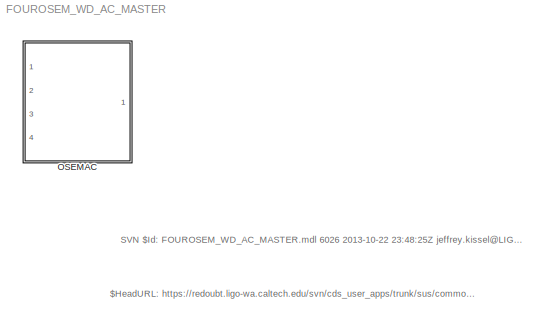
MODEL FOUROSEM_WD_AC_MASTER
KIND library
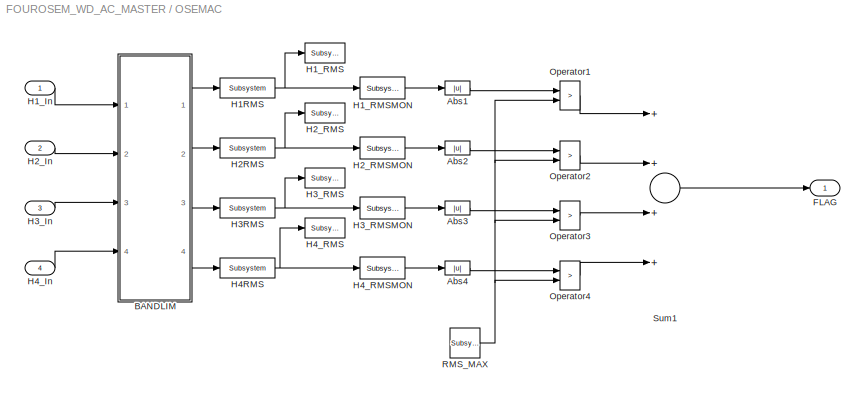
BLOCK [SubSystem] OSEMAC
  Ports = [4, 1]
  RequestExecContextInheritance = off
  SID = 1
BLOCK [Abs] OSEMAC/Abs1
  SID = 6
  SaturateOnIntegerOverflow = off
BLOCK [Abs] OSEMAC/Abs2
  SID = 7
  SaturateOnIntegerOverflow = off
BLOCK [Abs] OSEMAC/Abs3
  SID = 8
  SaturateOnIntegerOverflow = off
BLOCK [Abs] OSEMAC/Abs4
  SID = 9
  SaturateOnIntegerOverflow = off
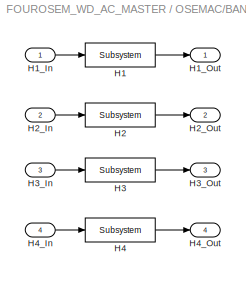
BLOCK [SubSystem] OSEMAC/BANDLIM
  Ports = [4, 4]
  RequestExecContextInheritance = off
  SID = 10
BLOCK [Reference] OSEMAC/BANDLIM/H1  REF=cdsFilt/Subsystem
  AttributesFormatString = %<Tag>
  Description = Purpose:                                                                                                                                                                                                                                  \nStandard CDS IIR filter module.                                                                                                                                     ...<+1302ch>  <repeated x4 — deduplicated; at blocks: H1, H2, H3, H4>
  FunctionWithSeparateData = off
  Ports = [1, 1]
  RTWMemSecDataConstants = Inherit from model
  RTWMemSecDataInternal = Inherit from model
  RTWMemSecDataParameters = Inherit from model
  RTWMemSecFuncExecute = Inherit from model
  RTWMemSecFuncInitTerm = Inherit from model
  SID = 17
  ShowPortLabels = FromPortIcon
  SourceBlock = cdsFilt/Subsystem
  SourceType = SubSystem
  SystemSampleTime = -1
  Tag = cdsFilt
BLOCK [Inport] OSEMAC/BANDLIM/H1_In
  IconDisplay = Port number
  SID = 11
BLOCK [Outport] OSEMAC/BANDLIM/H1_Out
  IconDisplay = Port number
  SID = 19
BLOCK [Reference] OSEMAC/BANDLIM/H2  REF=cdsFilt/Subsystem
  AttributesFormatString = %<Tag>
  FunctionWithSeparateData = off
  Ports = [1, 1]
  RTWMemSecDataConstants = Inherit from model
  RTWMemSecDataInternal = Inherit from model
  RTWMemSecDataParameters = Inherit from model
  RTWMemSecFuncExecute = Inherit from model
  RTWMemSecFuncInitTerm = Inherit from model
  SID = 15
  ShowPortLabels = FromPortIcon
  SourceBlock = cdsFilt/Subsystem
  SourceType = SubSystem
  SystemSampleTime = -1
  Tag = cdsFilt
BLOCK [Inport] OSEMAC/BANDLIM/H2_In
  IconDisplay = Port number
  Port = 2
  SID = 12
BLOCK [Outport] OSEMAC/BANDLIM/H2_Out
  IconDisplay = Port number
  Port = 2
  SID = 20
BLOCK [Reference] OSEMAC/BANDLIM/H3  REF=cdsFilt/Subsystem
  AttributesFormatString = %<Tag>
  FunctionWithSeparateData = off
  Ports = [1, 1]
  RTWMemSecDataConstants = Inherit from model
  RTWMemSecDataInternal = Inherit from model
  RTWMemSecDataParameters = Inherit from model
  RTWMemSecFuncExecute = Inherit from model
  RTWMemSecFuncInitTerm = Inherit from model
  SID = 18
  ShowPortLabels = FromPortIcon
  SourceBlock = cdsFilt/Subsystem
  SourceType = SubSystem
  SystemSampleTime = -1
  Tag = cdsFilt
BLOCK [Inport] OSEMAC/BANDLIM/H3_In
  IconDisplay = Port number
  Port = 3
  SID = 13
BLOCK [Outport] OSEMAC/BANDLIM/H3_Out
  IconDisplay = Port number
  Port = 3
  SID = 21
BLOCK [Reference] OSEMAC/BANDLIM/H4  REF=cdsFilt/Subsystem
  AttributesFormatString = %<Tag>
  FunctionWithSeparateData = off
  Ports = [1, 1]
  RTWMemSecDataConstants = Inherit from model
  RTWMemSecDataInternal = Inherit from model
  RTWMemSecDataParameters = Inherit from model
  RTWMemSecFuncExecute = Inherit from model
  RTWMemSecFuncInitTerm = Inherit from model
  SID = 16
  ShowPortLabels = FromPortIcon
  SourceBlock = cdsFilt/Subsystem
  SourceType = SubSystem
  SystemSampleTime = -1
  Tag = cdsFilt
BLOCK [Inport] OSEMAC/BANDLIM/H4_In
  IconDisplay = Port number
  Port = 4
  SID = 14
BLOCK [Outport] OSEMAC/BANDLIM/H4_Out
  IconDisplay = Port number
  Port = 4
  SID = 22
BLOCK [Outport] OSEMAC/FLAG
  IconDisplay = Port number
  SID = 41
BLOCK [Reference] OSEMAC/H1RMS  REF=cdsRms/Subsystem
  AttributesFormatString = %<Tag>
  Description = Purpose:                                   \nCalculate an RMS based on the input signal.
  FunctionWithSeparateData = off
  Ports = [1, 1]
  RTWMemSecDataConstants = Inherit from model
  RTWMemSecDataInternal = Inherit from model
  RTWMemSecDataParameters = Inherit from model
  RTWMemSecFuncExecute = Inherit from model
  RTWMemSecFuncInitTerm = Inherit from model
  SID = 35
  ShowPortLabels = FromPortIcon
  SourceBlock = cdsRms/Subsystem
  SourceType = SubSystem
  SystemSampleTime = -1
  Tag = cdsRms
BLOCK [Inport] OSEMAC/H1_In
  IconDisplay = Port number
  SID = 2
BLOCK [Reference] OSEMAC/H1_RMS  REF=cdsTP/Subsystem
  AttributesFormatString = %<Tag>
  FunctionWithSeparateData = off
  Ports = [1]
  RTWMemSecDataConstants = Inherit from model
  RTWMemSecDataInternal = Inherit from model
  RTWMemSecDataParameters = Inherit from model
  RTWMemSecFuncExecute = Inherit from model
  RTWMemSecFuncInitTerm = Inherit from model
  SID = 36
  ShowPortLabels = FromPortIcon
  SourceBlock = cdsTP/Subsystem
  SourceType = SubSystem
  SystemSampleTime = -1
  Tag = Test Point
BLOCK [Reference] OSEMAC/H1_RMSMON  REF=cdsEpicsOut/Subsystem
  AttributesFormatString = %<Tag>
  Description = Purpose:                                          \nOutput a FE signal to an EPICS channel.           \n                                                  \nOperation:                                        \nTakes input value and passes it to EPICS record.  \n                                                  \nUsage:                                            \nName the part with the desired EPICS...<+14ch>  <repeated x4 — deduplicated; at blocks: H1_RMSMON, H2_RMSMON, H3_RMSMON, H4_RMSMON>
  FunctionWithSeparateData = off
  Ports = [1, 1]
  RTWMemSecDataConstants = Inherit from model
  RTWMemSecDataInternal = Inherit from model
  RTWMemSecDataParameters = Inherit from model
  RTWMemSecFuncExecute = Inherit from model
  RTWMemSecFuncInitTerm = Inherit from model
  SID = 37
  ShowPortLabels = FromPortIcon
  SourceBlock = cdsEpicsOut/Subsystem
  SourceType = SubSystem
  SystemSampleTime = -1
  Tag = cdsEpicsOutput
BLOCK [Reference] OSEMAC/H2RMS  REF=cdsRms/Subsystem
  AttributesFormatString = %<Tag>
  Description = Purpose:                                   \nCalculate an RMS based on the input signal.
  FunctionWithSeparateData = off
  Ports = [1, 1]
  RTWMemSecDataConstants = Inherit from model
  RTWMemSecDataInternal = Inherit from model
  RTWMemSecDataParameters = Inherit from model
  RTWMemSecFuncExecute = Inherit from model
  RTWMemSecFuncInitTerm = Inherit from model
  SID = 23
  ShowPortLabels = FromPortIcon
  SourceBlock = cdsRms/Subsystem
  SourceType = SubSystem
  SystemSampleTime = -1
  Tag = cdsRms
BLOCK [Inport] OSEMAC/H2_In
  IconDisplay = Port number
  Port = 2
  SID = 3
BLOCK [Reference] OSEMAC/H2_RMS  REF=cdsTP/Subsystem
  AttributesFormatString = %<Tag>
  FunctionWithSeparateData = off
  Ports = [1]
  RTWMemSecDataConstants = Inherit from model
  RTWMemSecDataInternal = Inherit from model
  RTWMemSecDataParameters = Inherit from model
  RTWMemSecFuncExecute = Inherit from model
  RTWMemSecFuncInitTerm = Inherit from model
  SID = 24
  ShowPortLabels = FromPortIcon
  SourceBlock = cdsTP/Subsystem
  SourceType = SubSystem
  SystemSampleTime = -1
  Tag = Test Point
BLOCK [Reference] OSEMAC/H2_RMSMON  REF=cdsEpicsOut/Subsystem
  AttributesFormatString = %<Tag>
  FunctionWithSeparateData = off
  Ports = [1, 1]
  RTWMemSecDataConstants = Inherit from model
  RTWMemSecDataInternal = Inherit from model
  RTWMemSecDataParameters = Inherit from model
  RTWMemSecFuncExecute = Inherit from model
  RTWMemSecFuncInitTerm = Inherit from model
  SID = 25
  ShowPortLabels = FromPortIcon
  SourceBlock = cdsEpicsOut/Subsystem
  SourceType = SubSystem
  SystemSampleTime = -1
  Tag = cdsEpicsOutput
BLOCK [Reference] OSEMAC/H3RMS  REF=cdsRms/Subsystem
  AttributesFormatString = %<Tag>
  Description = Purpose:                                   \nCalculate an RMS based on the input signal.
  FunctionWithSeparateData = off
  Ports = [1, 1]
  RTWMemSecDataConstants = Inherit from model
  RTWMemSecDataInternal = Inherit from model
  RTWMemSecDataParameters = Inherit from model
  RTWMemSecFuncExecute = Inherit from model
  RTWMemSecFuncInitTerm = Inherit from model
  SID = 38
  ShowPortLabels = FromPortIcon
  SourceBlock = cdsRms/Subsystem
  SourceType = SubSystem
  SystemSampleTime = -1
  Tag = cdsRms
BLOCK [Inport] OSEMAC/H3_In
  IconDisplay = Port number
  Port = 3
  SID = 4
BLOCK [Reference] OSEMAC/H3_RMS  REF=cdsTP/Subsystem
  AttributesFormatString = %<Tag>
  FunctionWithSeparateData = off
  Ports = [1]
  RTWMemSecDataConstants = Inherit from model
  RTWMemSecDataInternal = Inherit from model
  RTWMemSecDataParameters = Inherit from model
  RTWMemSecFuncExecute = Inherit from model
  RTWMemSecFuncInitTerm = Inherit from model
  SID = 39
  ShowPortLabels = FromPortIcon
  SourceBlock = cdsTP/Subsystem
  SourceType = SubSystem
  SystemSampleTime = -1
  Tag = Test Point
BLOCK [Reference] OSEMAC/H3_RMSMON  REF=cdsEpicsOut/Subsystem
  AttributesFormatString = %<Tag>
  FunctionWithSeparateData = off
  Ports = [1, 1]
  RTWMemSecDataConstants = Inherit from model
  RTWMemSecDataInternal = Inherit from model
  RTWMemSecDataParameters = Inherit from model
  RTWMemSecFuncExecute = Inherit from model
  RTWMemSecFuncInitTerm = Inherit from model
  SID = 40
  ShowPortLabels = FromPortIcon
  SourceBlock = cdsEpicsOut/Subsystem
  SourceType = SubSystem
  SystemSampleTime = -1
  Tag = cdsEpicsOutput
BLOCK [Reference] OSEMAC/H4RMS  REF=cdsRms/Subsystem
  AttributesFormatString = %<Tag>
  Description = Purpose:                                   \nCalculate an RMS based on the input signal.
  FunctionWithSeparateData = off
  Ports = [1, 1]
  RTWMemSecDataConstants = Inherit from model
  RTWMemSecDataInternal = Inherit from model
  RTWMemSecDataParameters = Inherit from model
  RTWMemSecFuncExecute = Inherit from model
  RTWMemSecFuncInitTerm = Inherit from model
  SID = 26
  ShowPortLabels = FromPortIcon
  SourceBlock = cdsRms/Subsystem
  SourceType = SubSystem
  SystemSampleTime = -1
  Tag = cdsRms
BLOCK [Inport] OSEMAC/H4_In
  IconDisplay = Port number
  Port = 4
  SID = 5
BLOCK [Reference] OSEMAC/H4_RMS  REF=cdsTP/Subsystem
  AttributesFormatString = %<Tag>
  FunctionWithSeparateData = off
  Ports = [1]
  RTWMemSecDataConstants = Inherit from model
  RTWMemSecDataInternal = Inherit from model
  RTWMemSecDataParameters = Inherit from model
  RTWMemSecFuncExecute = Inherit from model
  RTWMemSecFuncInitTerm = Inherit from model
  SID = 27
  ShowPortLabels = FromPortIcon
  SourceBlock = cdsTP/Subsystem
  SourceType = SubSystem
  SystemSampleTime = -1
  Tag = Test Point
BLOCK [Reference] OSEMAC/H4_RMSMON  REF=cdsEpicsOut/Subsystem
  AttributesFormatString = %<Tag>
  FunctionWithSeparateData = off
  Ports = [1, 1]
  RTWMemSecDataConstants = Inherit from model
  RTWMemSecDataInternal = Inherit from model
  RTWMemSecDataParameters = Inherit from model
  RTWMemSecFuncExecute = Inherit from model
  RTWMemSecFuncInitTerm = Inherit from model
  SID = 28
  ShowPortLabels = FromPortIcon
  SourceBlock = cdsEpicsOut/Subsystem
  SourceType = SubSystem
  SystemSampleTime = -1
  Tag = cdsEpicsOutput
BLOCK [RelationalOperator] OSEMAC/Operator1
  InputSameDT = off
  Operator = >
  OutDataTypeStr = boolean
  Ports = [2, 1]
  SID = 29
BLOCK [RelationalOperator] OSEMAC/Operator2
  InputSameDT = off
  Operator = >
  OutDataTypeStr = boolean
  Ports = [2, 1]
  SID = 30
  ZeroCross = off
BLOCK [RelationalOperator] OSEMAC/Operator3
  InputSameDT = off
  Operator = >
  OutDataTypeStr = boolean
  Ports = [2, 1]
  SID = 31
BLOCK [RelationalOperator] OSEMAC/Operator4
  InputSameDT = off
  Operator = >
  OutDataTypeStr = boolean
  Ports = [2, 1]
  SID = 32
BLOCK [Reference] OSEMAC/RMS_MAX  REF=cdsEpicsIn/Subsystem
  AttributesFormatString = %<Tag>
  Description = Purpose:                                                                              \nCreate an EPICS input channel connection to the FE realtime controls.                 \n                                                                                      \nOperation:                                                                            \nOutputs value from an EPICS ai record. Value is ...<+266ch>
  FunctionWithSeparateData = off
  Ports = [0, 1]
  RTWMemSecDataConstants = Inherit from model
  RTWMemSecDataInternal = Inherit from model
  RTWMemSecDataParameters = Inherit from model
  RTWMemSecFuncExecute = Inherit from model
  RTWMemSecFuncInitTerm = Inherit from model
  SID = 33
  ShowPortLabels = FromPortIcon
  SourceBlock = cdsEpicsIn/Subsystem
  SourceType = SubSystem
  SystemSampleTime = -1
  Tag = cdsEpicsIn
BLOCK [Sum] OSEMAC/Sum1
  InputSameDT = off
  Inputs = ++++
  OutDataTypeStr = Inherit: Inherit via internal rule
  Ports = [4, 1]
  SID = 34
  SaturateOnIntegerOverflow = off
ANNOTATION (root): $HeadURL: https://redoubt.ligo-wa.caltech.edu/svn/cds_user_apps/trunk/sus/common/models/FOUROSEM_WD_AC_MASTER.mdl $
ANNOTATION (root): SVN $Id: FOUROSEM_WD_AC_MASTER.mdl 6026 2013-10-22 23:48:25Z <email> $
LINE OSEMAC/Abs1:1 -> OSEMAC/Operator1:1
LINE OSEMAC/Abs2:1 -> OSEMAC/Operator2:1
LINE OSEMAC/Abs3:1 -> OSEMAC/Operator3:1
LINE OSEMAC/Abs4:1 -> OSEMAC/Operator4:1
LINE OSEMAC/BANDLIM/H1:1 -> OSEMAC/BANDLIM/H1_Out:1
LINE OSEMAC/BANDLIM/H1_In:1 -> OSEMAC/BANDLIM/H1:1
LINE OSEMAC/BANDLIM/H2:1 -> OSEMAC/BANDLIM/H2_Out:1
LINE OSEMAC/BANDLIM/H2_In:1 -> OSEMAC/BANDLIM/H2:1
LINE OSEMAC/BANDLIM/H3:1 -> OSEMAC/BANDLIM/H3_Out:1
LINE OSEMAC/BANDLIM/H3_In:1 -> OSEMAC/BANDLIM/H3:1
LINE OSEMAC/BANDLIM/H4:1 -> OSEMAC/BANDLIM/H4_Out:1
LINE OSEMAC/BANDLIM/H4_In:1 -> OSEMAC/BANDLIM/H4:1
LINE OSEMAC/BANDLIM:1 -> OSEMAC/H1RMS:1
LINE OSEMAC/BANDLIM:2 -> OSEMAC/H2RMS:1
LINE OSEMAC/BANDLIM:3 -> OSEMAC/H3RMS:1
LINE OSEMAC/BANDLIM:4 -> OSEMAC/H4RMS:1
NET OSEMAC/H1RMS:1 -> OSEMAC/H1_RMS:1, OSEMAC/H1_RMSMON:1
LINE OSEMAC/H1_In:1 -> OSEMAC/BANDLIM:1
LINE OSEMAC/H1_RMSMON:1 -> OSEMAC/Abs1:1
NET OSEMAC/H2RMS:1 -> OSEMAC/H2_RMS:1, OSEMAC/H2_RMSMON:1
LINE OSEMAC/H2_In:1 -> OSEMAC/BANDLIM:2
LINE OSEMAC/H2_RMSMON:1 -> OSEMAC/Abs2:1
NET OSEMAC/H3RMS:1 -> OSEMAC/H3_RMS:1, OSEMAC/H3_RMSMON:1
LINE OSEMAC/H3_In:1 -> OSEMAC/BANDLIM:3
LINE OSEMAC/H3_RMSMON:1 -> OSEMAC/Abs3:1
NET OSEMAC/H4RMS:1 -> OSEMAC/H4_RMS:1, OSEMAC/H4_RMSMON:1
LINE OSEMAC/H4_In:1 -> OSEMAC/BANDLIM:4
LINE OSEMAC/H4_RMSMON:1 -> OSEMAC/Abs4:1
LINE OSEMAC/Operator1:1 -> OSEMAC/Sum1:1
LINE OSEMAC/Operator2:1 -> OSEMAC/Sum1:2
LINE OSEMAC/Operator3:1 -> OSEMAC/Sum1:3
LINE OSEMAC/Operator4:1 -> OSEMAC/Sum1:4
NET OSEMAC/RMS_MAX:1 -> OSEMAC/Operator1:2, OSEMAC/Operator2:2, OSEMAC/Operator3:2, OSEMAC/Operator4:2
LINE OSEMAC/Sum1:1 -> OSEMAC/FLAG:1
note: NET lines group one-source signal fan-out (src -> all destinations, sorted); 1:1 wires keep LINE
